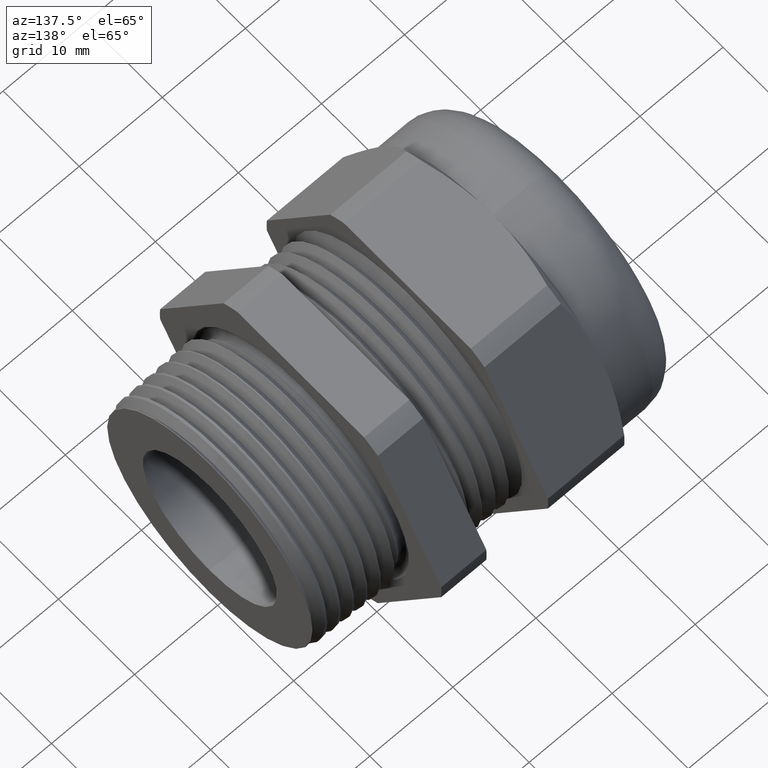
[diagram: clean part render]
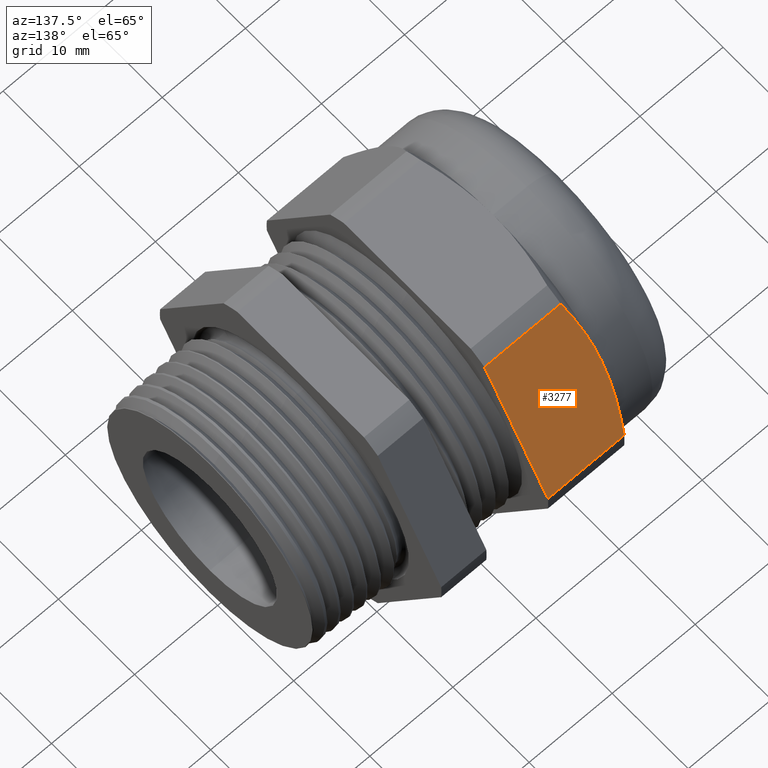
[diagram: same view with one face highlighted and labeled with its STEP entity id]
A machine part, auxiliary view. The second image highlights one B-rep face of the part: STEP entity #3277.
In plain terms, the highlighted planar face has unit normal (0, 0.866, 0.5).
Its self-contained STEP definition (entity closure, byte-faithful):
#357 = VERTEX_POINT ( 'NONE', #1126 ) ;
#765 = CARTESIAN_POINT ( 'NONE',  ( -0.9125000000000002000, 0.5491430333788607200, 0.3488563655653212900 ) ) ;
#1024 = CARTESIAN_POINT ( 'NONE',  ( -0.9074375322794262500, 0.5076265280763750900, 0.4207650621019293200 ) ) ;
#1025 = CARTESIAN_POINT ( 'NONE',  ( -0.9114778356147181800, 0.5352725060425331800, 0.3728808236396136700 ) ) ;
#1126 = CARTESIAN_POINT ( 'NONE',  ( -0.8674666790032094000, 0.7268402752278256800, 0.04107571431805965400 ) ) ;
#1282 = CARTESIAN_POINT ( 'NONE',  ( -0.8927551590989975000, 0.4528752911945963000, 0.5155969861584086500 ) ) ;
#1288 = CARTESIAN_POINT ( 'NONE',  ( -0.9044328033704851500, 0.4938841810957507700, 0.4445675052876111300 ) ) ;
#1543 = CARTESIAN_POINT ( 'NONE',  ( -0.8814205714001799300, 0.4258267530969211400, 0.5624464284140443500 ) ) ;
#1651 = CARTESIAN_POINT ( 'NONE',  ( -0.9125000000000002000, 0.5629165124598848300, 0.3250000000000000700 ) ) ;
#1795 = VECTOR ( 'NONE', #2063, 39.37007874015748100 ) ;
#1796 = CARTESIAN_POINT ( 'NONE',  ( -0.8674666790032094000, 0.3989927496919443200, 0.6089242856819405700 ) ) ;
#2063 = DIRECTION ( 'NONE',  ( 0.0000000000000000000, 0.5000000000000003300, -0.8660254037844383700 ) ) ;
#2228 = DIRECTION ( 'NONE',  ( 1.000000000000000000, 0.0000000000000000000, 0.0000000000000000000 ) ) ;
#2229 = VECTOR ( 'NONE', #2228, 39.37007874015748100 ) ;
#2230 = CARTESIAN_POINT ( 'NONE',  ( -2.992185896283379200, 0.3989927496919443200, 0.6089242856819405700 ) ) ;
#2231 = LINE ( 'NONE', #2230, #2229 ) ;
#2232 = CARTESIAN_POINT ( 'NONE',  ( -0.5058333333333336900, 0.3989927496919443200, 0.6089242856819405700 ) ) ;
#2269 = CARTESIAN_POINT ( 'NONE',  ( -0.5058333333333336900, 0.7268402752278255700, 0.04107571431805956400 ) ) ;
#2270 = DIRECTION ( 'NONE',  ( 1.000000000000000000, 0.0000000000000000000, 0.0000000000000000000 ) ) ;
#2271 = VECTOR ( 'NONE', #2270, 39.37007874015748100 ) ;
#2272 = CARTESIAN_POINT ( 'NONE',  ( -2.992185896283379200, 0.7268402752278255700, 0.04107571431805956400 ) ) ;
#2273 = LINE ( 'NONE', #2272, #2271 ) ;
#2280 = PLANE ( 'NONE',  #2282 ) ;
#2282 = AXIS2_PLACEMENT_3D ( 'NONE', #2335, #2326, #2325 ) ;
#2283 = FACE_OUTER_BOUND ( 'NONE', #3302, .T. ) ;
#2310 = CARTESIAN_POINT ( 'NONE',  ( -0.8674666790032094000, 0.3989927496919443200, 0.6089242856819405700 ) ) ;
#2312 = CARTESIAN_POINT ( 'NONE',  ( -0.9125000000000002000, 0.5629165124598848300, 0.3250000000000000700 ) ) ;
#2314 = CARTESIAN_POINT ( 'NONE',  ( -0.5058333333333334700, 0.7113165124598851400, 0.06796366015677865500 ) ) ;
#2315 = B_SPLINE_CURVE_WITH_KNOTS ( 'NONE', 3,
 ( #2312, #765, #1025, #1024, #1288, #1282, #1543, #1796 ),
 .UNSPECIFIED., .F., .F.,
 ( 4, 2, 2, 4 ),
 ( 0.008402769293125151800, 0.01048919587064709400, 0.01257562244816903800, 0.01674847560321293000 ),
 .UNSPECIFIED. ) ;
#2316 = LINE ( 'NONE', #2314, #1795 ) ;
#2317 = CARTESIAN_POINT ( 'NONE',  ( -0.9125000000000002000, 0.5629165124598848300, 0.3250000000000000700 ) ) ;
#2318 = CARTESIAN_POINT ( 'NONE',  ( -0.9124999999999999800, 0.5906510409558672900, 0.2769623875209920600 ) ) ;
#2319 = CARTESIAN_POINT ( 'NONE',  ( -0.9083465192945222600, 0.6181565215413857800, 0.2293214976602745400 ) ) ;
#2320 = CARTESIAN_POINT ( 'NONE',  ( -0.8928224553762588200, 0.6727694882672528000, 0.1347290645390046600 ) ) ;
#2321 = CARTESIAN_POINT ( 'NONE',  ( -0.8814868053153364100, 0.6998789008317275500, 0.08777418461398792100 ) ) ;
#2322 = CARTESIAN_POINT ( 'NONE',  ( -0.8674666790032094000, 0.7268402752278256800, 0.04107571431805965400 ) ) ;
#2323 = B_SPLINE_CURVE_WITH_KNOTS ( 'NONE', 3,
 ( #2322, #2321, #2320, #2319, #2318, #2317 ),
 .UNSPECIFIED., .F., .F.,
 ( 4, 2, 4 ),
 ( 2.361308568655489700E-007, 0.004201502711991008900, 0.008402769293125151800 ),
 .UNSPECIFIED. ) ;
#2325 = DIRECTION ( 'NONE',  ( 0.0000000000000000000, -0.5000000000000003300, 0.8660254037844383700 ) ) ;
#2326 = DIRECTION ( 'NONE',  ( 0.0000000000000000000, 0.8660254037844384900, 0.5000000000000004400 ) ) ;
#2335 = CARTESIAN_POINT ( 'NONE',  ( -2.992185896283379200, 0.7268402752278256800, 0.04107571431805962700 ) ) ;
#2969 = VERTEX_POINT ( 'NONE', #1651 ) ;
#3239 = VERTEX_POINT ( 'NONE', #2232 ) ;
#3241 = EDGE_CURVE ( 'NONE', #3263, #3239, #2231, .T. ) ;
#3251 = EDGE_CURVE ( 'NONE', #357, #3252, #2273, .T. ) ;
#3252 = VERTEX_POINT ( 'NONE', #2269 ) ;
#3263 = VERTEX_POINT ( 'NONE', #2310 ) ;
#3277 = ADVANCED_FACE ( 'NONE', ( #2283 ), #2280, .T. ) ;
#3278 = ORIENTED_EDGE ( 'NONE', *, *, #3251, .F. ) ;
#3280 = ORIENTED_EDGE ( 'NONE', *, *, #3281, .T. ) ;
#3281 = EDGE_CURVE ( 'NONE', #357, #2969, #2323, .T. ) ;
#3282 = ORIENTED_EDGE ( 'NONE', *, *, #3283, .T. ) ;
#3283 = EDGE_CURVE ( 'NONE', #2969, #3263, #2315, .T. ) ;
#3284 = ORIENTED_EDGE ( 'NONE', *, *, #3241, .T. ) ;
#3285 = ORIENTED_EDGE ( 'NONE', *, *, #3286, .T. ) ;
#3286 = EDGE_CURVE ( 'NONE', #3239, #3252, #2316, .T. ) ;
#3302 = EDGE_LOOP ( 'NONE', ( #3278, #3280, #3282, #3284, #3285 ) ) ;